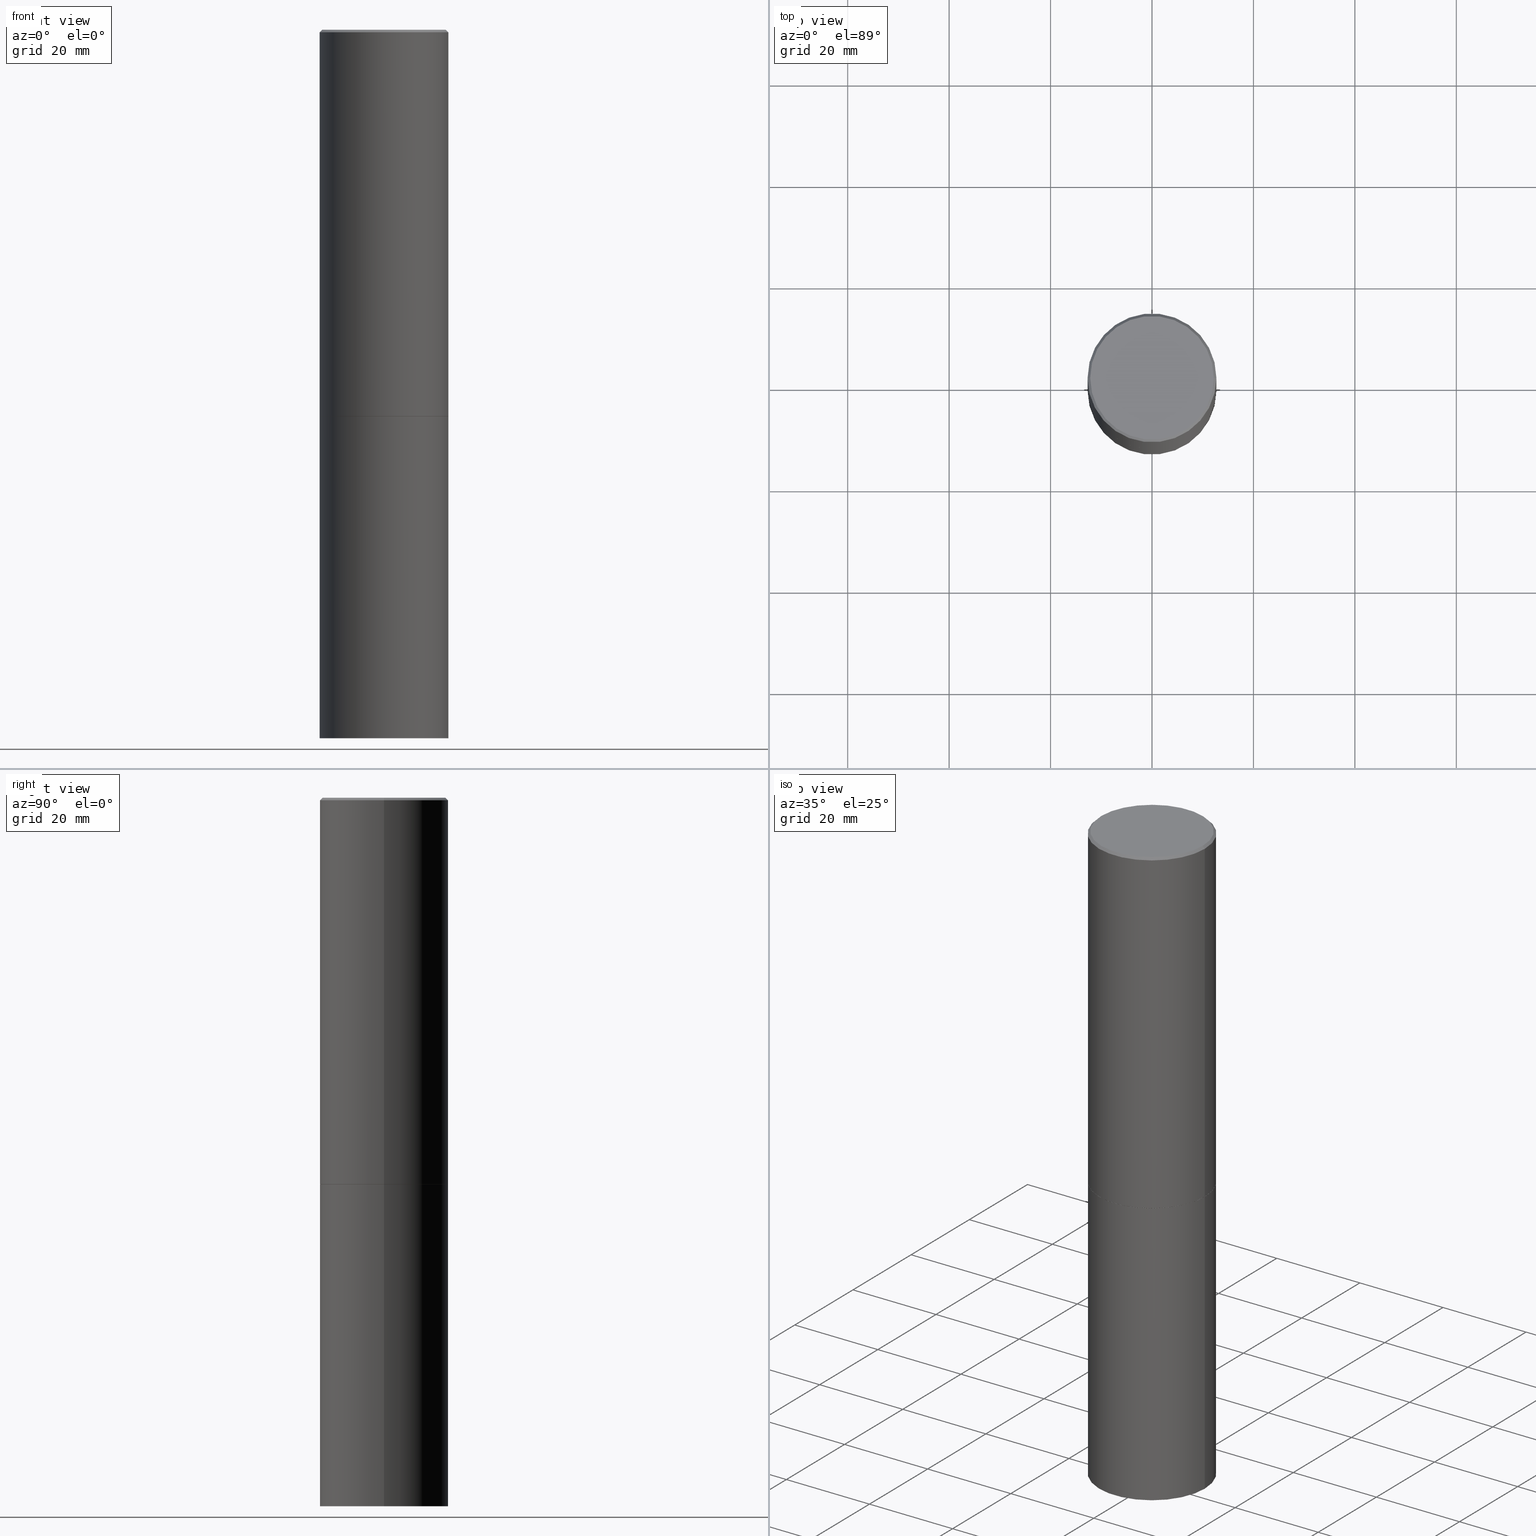
[diagram: canonical four-view strip — front | top / right | iso, engineering-drawing reading convention]
A machine part, canonical four-view strip (front | top / right | iso — engineering-drawing reading convention). The complete STEP part file that produces these views, byte-faithful:
ISO-10303-21;
HEADER;
FILE_DESCRIPTION (( 'STEP AP203' ),
    '1' );
FILE_NAME ('77294.STEP',
    '2024-02-29T18:20:36',
    ( '' ),
    ( '' ),
    'SwSTEP 2.0',
    'SolidWorks 2023',
    '' );
FILE_SCHEMA (( 'CONFIG_CONTROL_DESIGN' ));
ENDSEC;

DATA;
#1 = VERTEX_POINT ( 'NONE', #246 ) ;
#2 = AXIS2_PLACEMENT_3D ( 'NONE', #358, #106, #195 ) ;
#3 = PERSON_AND_ORGANIZATION ( #82, #279 ) ;
#4 = APPROVAL_STATUS ( 'not_yet_approved' ) ;
#5 = PERSON_AND_ORGANIZATION ( #82, #279 ) ;
#6 = EDGE_CURVE ( 'NONE', #336, #277, #349, .T. ) ;
#7 = AXIS2_PLACEMENT_3D ( 'NONE', #263, #12, #270 ) ;
#8 = PERSON_AND_ORGANIZATION ( #82, #279 ) ;
#9 = AXIS2_PLACEMENT_3D ( 'NONE', #357, #141, #104 ) ;
#10 = DIRECTION ( 'NONE',  ( -2.445468806185136597E-29, 3.491481338843145583E-15, 1.000000000000000000 ) ) ;
#11 = PRODUCT_DEFINITION_FORMATION_WITH_SPECIFIED_SOURCE ( 'ANY', '', #329, .NOT_KNOWN. ) ;
#12 = DIRECTION ( 'NONE',  ( -2.445468806185136597E-29, 3.491481338843145583E-15, 1.000000000000000000 ) ) ;
#13 = ORIENTED_EDGE ( 'NONE', *, *, #59, .F. ) ;
#14 = DIRECTION ( 'NONE',  ( 1.000000000000000000, -6.982962677686262766E-15, 0.000000000000000000 ) ) ;
#15 = ADVANCED_FACE ( 'NONE', ( #305 ), #23, .F. ) ;
#16 = VECTOR ( 'NONE', #350, 39.37007874015748143 ) ;
#17 = CARTESIAN_POINT ( 'NONE',  ( 4.890937612370304688E-31, -6.982962677686335982E-17, -0.02000000000000012879 ) ) ;
#18 = ORIENTED_EDGE ( 'NONE', *, *, #119, .F. ) ;
#19 = CARTESIAN_POINT ( 'NONE',  ( -0.4999999999999997224, 3.421651712066268085E-15, -0.02000000000000012879 ) ) ;
#20 = LINE ( 'NONE', #268, #16 ) ;
#21 = ORIENTED_EDGE ( 'NONE', *, *, #133, .T. ) ;
#22 = DIRECTION ( 'NONE',  ( 1.000000000000000000, -6.982962677686266711E-15, 0.000000000000000000 ) ) ;
#23 = PLANE ( 'NONE',  #313 ) ;
#24 = EDGE_CURVE ( 'NONE', #175, #1, #344, .T. ) ;
#25 = CARTESIAN_POINT ( 'NONE',  ( 7.333960949749226429E-29, -1.047095253519059492E-14, -2.999000000000000554 ) ) ;
#26 = ORIENTED_EDGE ( 'NONE', *, *, #356, .T. ) ;
#27 = CLOSED_SHELL ( 'NONE', ( #229, #298, #123, #101, #31, #308, #251, #15 ) ) ;
#28 = APPROVAL_PERSON_ORGANIZATION ( #153, #261, #151 ) ;
#29 = ORIENTED_EDGE ( 'NONE', *, *, #167, .T. ) ;
#30 = CALENDAR_DATE ( 2024, 29, 2 ) ;
#31 = ADVANCED_FACE ( 'NONE', ( #154 ), #32, .T. ) ;
#32 = CYLINDRICAL_SURFACE ( 'NONE', #110, 0.4999999999999998335 ) ;
#33 = VECTOR ( 'NONE', #262, 39.37007874015748143 ) ;
#34 = DIRECTION ( 'NONE',  ( 0.000000000000000000, 0.000000000000000000, 1.000000000000000000 ) ) ;
#35 = EDGE_CURVE ( 'NONE', #335, #277, #233, .T. ) ;
#36 = AXIS2_PLACEMENT_3D ( 'NONE', #76, #130, #216 ) ;
#37 = DIRECTION ( 'NONE',  ( -2.445468806185136597E-29, 3.491481338843145583E-15, 1.000000000000000000 ) ) ;
#38 = ORIENTED_EDGE ( 'NONE', *, *, #191, .T. ) ;
#39 = PERSON_AND_ORGANIZATION ( #82, #279 ) ;
#40 = CYLINDRICAL_SURFACE ( 'NONE', #7, 0.5000000000000000000 ) ;
#41 = EDGE_LOOP ( 'NONE', ( #249, #38 ) ) ;
#42 = DATE_AND_TIME ( #295, #225 ) ;
#43 = AXIS2_PLACEMENT_3D ( 'NONE', #136, #292, #242 ) ;
#44 = CARTESIAN_POINT ( 'NONE',  ( 0.4989999999999999991, -1.395894239269488369E-14, -2.999999999999999556 ) ) ;
#45 = ADVANCED_FACE ( 'NONE', ( #67 ), #157, .T. ) ;
#46 = ORIENTED_EDGE ( 'NONE', *, *, #352, .T. ) ;
#47 = AXIS2_PLACEMENT_3D ( 'NONE', #71, #238, #296 ) ;
#48 = CARTESIAN_POINT ( 'NONE',  ( 0.000000000000000000, 0.000000000000000000, 0.000000000000000000 ) ) ;
#49 = ORIENTED_EDGE ( 'NONE', *, *, #73, .T. ) ;
#50 = CARTESIAN_POINT ( 'NONE',  ( 3.351822085289405181E-15, 0.4799999999999996492, -1.669508273909558064E-15 ) ) ;
#51 = DIRECTION ( 'NONE',  ( 2.445468806185136597E-29, -3.491481338843145583E-15, -1.000000000000000000 ) ) ;
#52 = CARTESIAN_POINT ( 'NONE',  ( -3.131554243005659264E-46, 4.471029511141341874E-32, 1.280553747030123384E-17 ) ) ;
#53 = ORIENTED_EDGE ( 'NONE', *, *, #182, .T. ) ;
#54 = DIRECTION ( 'NONE',  ( 1.000000000000000000, -6.982962677686266711E-15, 0.000000000000000000 ) ) ;
#55 = VERTEX_POINT ( 'NONE', #208 ) ;
#56 = CIRCLE ( 'NONE', #338, 0.4999999999999997224 ) ;
#57 = CC_DESIGN_APPROVAL ( #261, ( #11 ) ) ;
#58 = APPLICATION_CONTEXT ( 'configuration controlled 3d designs of mechanical parts and assemblies' ) ;
#59 = EDGE_CURVE ( 'NONE', #140, #166, #272, .T. ) ;
#60 = APPROVAL_DATE_TIME ( #61, #333 ) ;
#61 = DATE_AND_TIME ( #177, #303 ) ;
#62 = AXIS2_PLACEMENT_3D ( 'NONE', #156, #10, #353 ) ;
#63 = ADVANCED_FACE ( 'NONE', ( #318 ), #129, .T. ) ;
#64 = COORDINATED_UNIVERSAL_TIME_OFFSET ( 5, 0, .BEHIND. ) ;
#65 = CARTESIAN_POINT ( 'NONE',  ( 3.491481338843267462E-15, 0.4999999999999807931, -5.500000000000001776 ) ) ;
#66 = CONICAL_SURFACE ( 'NONE', #199, 0.4989999999999999991, 0.7853981633978239785 ) ;
#67 = FACE_OUTER_BOUND ( 'NONE', #147, .T. ) ;
#68 = SHAPE_DEFINITION_REPRESENTATION ( #137, #116 ) ;
#69 = DIRECTION ( 'NONE',  ( -2.445468806185136877E-29, 3.491481338843145188E-15, 1.000000000000000000 ) ) ;
#70 = DIRECTION ( 'NONE',  ( 1.000000000000000000, -6.982962677686267499E-15, 4.876036955247132767E-29 ) ) ;
#71 = CARTESIAN_POINT ( 'NONE',  ( 3.491481338843206325E-15, 0.4999999999999895639, -3.000000000000001332 ) ) ;
#72 = AXIS2_PLACEMENT_3D ( 'NONE', #363, #117, #287 ) ;
#73 = EDGE_CURVE ( 'NONE', #83, #198, #214, .T. ) ;
#74 = AXIS2_PLACEMENT_3D ( 'NONE', #347, #75, #125 ) ;
#75 = DIRECTION ( 'NONE',  ( -2.445468806185136597E-29, 3.491481338843145583E-15, 1.000000000000000000 ) ) ;
#76 = CARTESIAN_POINT ( 'NONE',  ( 7.333960949749226429E-29, -1.047095253519059492E-14, -2.999000000000000554 ) ) ;
#77 = ORIENTED_EDGE ( 'NONE', *, *, #257, .T. ) ;
#78 = AXIS2_PLACEMENT_3D ( 'NONE', #107, #220, #164 ) ;
#79 = CARTESIAN_POINT ( 'NONE',  ( 1.345007843401824904E-28, -1.920314736363729972E-14, -5.500000000000000000 ) ) ;
#80 = ORIENTED_EDGE ( 'NONE', *, *, #322, .F. ) ;
#81 = VERTEX_POINT ( 'NONE', #189 ) ;
#82 = PERSON ( 'UNSPECIFIED', 'UNSPECIFIED', 'UNSPECIFIED', ('UNSPECIFIED'), ('UNSPECIFIED'), ('UNSPECIFIED') ) ;
#83 = VERTEX_POINT ( 'NONE', #190 ) ;
#84 = CARTESIAN_POINT ( 'NONE',  ( 0.5000000000000000000, -1.396592535537256813E-14, -2.999999999999999556 ) ) ;
#85 = ORIENTED_EDGE ( 'NONE', *, *, #173, .F. ) ;
#86 = CIRCLE ( 'NONE', #314, 0.5000000000000000000 ) ;
#87 = EDGE_CURVE ( 'NONE', #166, #140, #152, .T. ) ;
#88 = CC_DESIGN_SECURITY_CLASSIFICATION ( #236, ( #11 ) ) ;
#89 = PERSON_AND_ORGANIZATION ( #82, #279 ) ;
#90 = CALENDAR_DATE ( 2024, 29, 2 ) ;
#91 = DIRECTION ( 'NONE',  ( 1.000000000000000000, 0.000000000000000000, 0.000000000000000000 ) ) ;
#92 = EDGE_CURVE ( 'NONE', #198, #83, #228, .T. ) ;
#93 = APPROVAL_STATUS ( 'not_yet_approved' ) ;
#94 = DIRECTION ( 'NONE',  ( 1.000000000000000000, -6.982962677686266711E-15, 4.876176775795935793E-29 ) ) ;
#95 = CARTESIAN_POINT ( 'NONE',  ( 1.345007843401824904E-28, -1.920314736363729972E-14, -5.500000000000000000 ) ) ;
#96 = ORIENTED_EDGE ( 'NONE', *, *, #352, .F. ) ;
#97 = PERSON_AND_ORGANIZATION ( #82, #279 ) ;
#98 = CARTESIAN_POINT ( 'NONE',  ( 0.000000000000000000, 0.000000000000000000, 0.000000000000000000 ) ) ;
#99 = MANIFOLD_SOLID_BREP ( 'Body-Move/Copy2[2]', #27 ) ;
#100 = DIRECTION ( 'NONE',  ( -0.7071067811868130271, 7.493145998871311837E-15, 0.7071067811862817853 ) ) ;
#101 = ADVANCED_FACE ( 'NONE', ( #144 ), #193, .T. ) ;
#102 = CARTESIAN_POINT ( 'NONE',  ( 7.336406418555408669E-29, -1.047444401652943478E-14, -2.999999999999999556 ) ) ;
#103 = LINE ( 'NONE', #359, #278 ) ;
#104 = DIRECTION ( 'NONE',  ( 1.000000000000000000, -6.982962677686269077E-15, 0.000000000000000000 ) ) ;
#105 = CARTESIAN_POINT ( 'NONE',  ( -0.4999999999999998335, 3.552713678800499746E-15, -2.459467545127452330E-29 ) ) ;
#106 = DIRECTION ( 'NONE',  ( -2.445468806185136597E-29, 3.491481338843145583E-15, 1.000000000000000000 ) ) ;
#107 = CARTESIAN_POINT ( 'NONE',  ( 4.890937612370304688E-31, -6.982962677686335982E-17, -0.02000000000000012879 ) ) ;
#108 = CARTESIAN_POINT ( 'NONE',  ( 7.336406418555408669E-29, -1.047444401652943478E-14, -2.999999999999999556 ) ) ;
#109 = ORIENTED_EDGE ( 'NONE', *, *, #133, .F. ) ;
#110 = AXIS2_PLACEMENT_3D ( 'NONE', #98, #37, #316 ) ;
#111 = ORIENTED_EDGE ( 'NONE', *, *, #73, .F. ) ;
#112 =( GEOMETRIC_REPRESENTATION_CONTEXT ( 3 ) GLOBAL_UNCERTAINTY_ASSIGNED_CONTEXT ( ( #285 ) ) GLOBAL_UNIT_ASSIGNED_CONTEXT ( ( #230, #256, #201 ) ) REPRESENTATION_CONTEXT ( 'NONE', 'WORKASPACE' ) );
#113 = ORIENTED_EDGE ( 'NONE', *, *, #284, .F. ) ;
#114 = PRODUCT_DEFINITION ( 'UNKNOWN', '', #11, #340 ) ;
#115 = ORIENTED_EDGE ( 'NONE', *, *, #148, .F. ) ;
#116 = ADVANCED_BREP_SHAPE_REPRESENTATION ( '77294', ( #342, #99, #215 ), #112 ) ;
#117 = DIRECTION ( 'NONE',  ( -2.445468806185136597E-29, 3.491481338843145583E-15, 1.000000000000000000 ) ) ;
#118 = APPROVAL_STATUS ( 'not_yet_approved' ) ;
#119 = EDGE_CURVE ( 'NONE', #81, #336, #103, .T. ) ;
#120 = PERSON_AND_ORGANIZATION_ROLE ( 'design_owner' ) ;
#121 = CC_DESIGN_PERSON_AND_ORGANIZATION_ASSIGNMENT ( #97, #124, ( #11 ) ) ;
#122 = AXIS2_PLACEMENT_3D ( 'NONE', #259, #51, #343 ) ;
#123 = ADVANCED_FACE ( 'NONE', ( #319 ), #325, .T. ) ;
#124 = PERSON_AND_ORGANIZATION_ROLE ( 'creator' ) ;
#125 = DIRECTION ( 'NONE',  ( 1.000000000000000000, -6.982962677686266711E-15, 0.000000000000000000 ) ) ;
#126 = VECTOR ( 'NONE', #100, 39.37007874015748854 ) ;
#127 = APPROVAL_PERSON_ORGANIZATION ( #8, #286, #266 ) ;
#128 = COORDINATED_UNIVERSAL_TIME_OFFSET ( 5, 0, .BEHIND. ) ;
#129 = PLANE ( 'NONE',  #253 ) ;
#130 = DIRECTION ( 'NONE',  ( -2.445468806185136597E-29, 3.491481338843145583E-15, 1.000000000000000000 ) ) ;
#131 = DATE_AND_TIME ( #90, #265 ) ;
#132 = ORIENTED_EDGE ( 'NONE', *, *, #257, .F. ) ;
#133 = EDGE_CURVE ( 'NONE', #198, #1, #321, .T. ) ;
#134 = DATE_TIME_ROLE ( 'classification_date' ) ;
#135 = APPROVAL_DATE_TIME ( #339, #261 ) ;
#136 = CARTESIAN_POINT ( 'NONE',  ( 7.336406418555408669E-29, -1.047444401652943478E-14, -2.999999999999999556 ) ) ;
#137 = PRODUCT_DEFINITION_SHAPE ( 'NONE', 'NONE',  #114 ) ;
#138 = VECTOR ( 'NONE', #69, 39.37007874015748143 ) ;
#139 = DIRECTION ( 'NONE',  ( 1.000000000000000000, -6.982962677686269077E-15, 0.000000000000000000 ) ) ;
#140 = VERTEX_POINT ( 'NONE', #186 ) ;
#141 = DIRECTION ( 'NONE',  ( -2.445468806185136597E-29, 3.491481338843145583E-15, 1.000000000000000000 ) ) ;
#142 = FACE_OUTER_BOUND ( 'NONE', #301, .T. ) ;
#143 = ORIENTED_EDGE ( 'NONE', *, *, #92, .F. ) ;
#144 = FACE_OUTER_BOUND ( 'NONE', #169, .T. ) ;
#145 = DIRECTION ( 'NONE',  ( 2.438088387897960049E-29, -3.491481338843145188E-15, -1.000000000000000000 ) ) ;
#146 = AXIS2_PLACEMENT_3D ( 'NONE', #102, #158, #328 ) ;
#147 = EDGE_LOOP ( 'NONE', ( #366, #46, #171, #192 ) ) ;
#148 = EDGE_CURVE ( 'NONE', #83, #175, #20, .T. ) ;
#149 = DIRECTION ( 'NONE',  ( -2.445468806185136597E-29, 3.491481338843145583E-15, 1.000000000000000000 ) ) ;
#150 = ORIENTED_EDGE ( 'NONE', *, *, #6, .F. ) ;
#151 = APPROVAL_ROLE ( '' ) ;
#152 = CIRCLE ( 'NONE', #9, 0.4989999999999999991 ) ;
#153 = PERSON_AND_ORGANIZATION ( #82, #279 ) ;
#154 = FACE_OUTER_BOUND ( 'NONE', #247, .T. ) ;
#155 = VECTOR ( 'NONE', #218, 39.37007874015748143 ) ;
#156 = CARTESIAN_POINT ( 'NONE',  ( 7.336406418555408669E-29, -1.047444401652943478E-14, -2.999999999999999556 ) ) ;
#157 = CYLINDRICAL_SURFACE ( 'NONE', #334, 0.5000000000000000000 ) ;
#158 = DIRECTION ( 'NONE',  ( -2.438088387897960049E-29, 3.491481338843145188E-15, 1.000000000000000000 ) ) ;
#159 = PERSON_AND_ORGANIZATION_ROLE ( 'classification_officer' ) ;
#160 = DIRECTION ( 'NONE',  ( 0.7071067811868130271, -2.468850131085038979E-15, 0.7071067811862817853 ) ) ;
#161 = VECTOR ( 'NONE', #160, 39.37007874015748854 ) ;
#162 = EDGE_CURVE ( 'NONE', #81, #335, #235, .T. ) ;
#163 = FACE_OUTER_BOUND ( 'NONE', #210, .T. ) ;
#164 = DIRECTION ( 'NONE',  ( -1.000000000000000000, 6.982962677686266711E-15, 0.000000000000000000 ) ) ;
#165 = FACE_OUTER_BOUND ( 'NONE', #41, .T. ) ;
#166 = VERTEX_POINT ( 'NONE', #240 ) ;
#167 = EDGE_CURVE ( 'NONE', #55, #309, #206, .T. ) ;
#168 = ORIENTED_EDGE ( 'NONE', *, *, #322, .T. ) ;
#169 = EDGE_LOOP ( 'NONE', ( #115, #143, #21, #271 ) ) ;
#170 = FACE_OUTER_BOUND ( 'NONE', #213, .T. ) ;
#171 = ORIENTED_EDGE ( 'NONE', *, *, #119, .T. ) ;
#172 = CC_DESIGN_APPROVAL ( #286, ( #236 ) ) ;
#173 = EDGE_CURVE ( 'NONE', #140, #309, #205, .T. ) ;
#174 = DIRECTION ( 'NONE',  ( -2.445468806185136597E-29, 3.491481338843145583E-15, 1.000000000000000000 ) ) ;
#175 = VERTEX_POINT ( 'NONE', #326 ) ;
#176 = CYLINDRICAL_SURFACE ( 'NONE', #310, 0.4999999999999998335 ) ;
#177 = CALENDAR_DATE ( 2024, 29, 2 ) ;
#178 = DATE_TIME_ROLE ( 'creation_date' ) ;
#179 = APPROVAL_PERSON_ORGANIZATION ( #3, #333, #203 ) ;
#180 = CC_DESIGN_DATE_AND_TIME_ASSIGNMENT ( #226, #178, ( #114 ) ) ;
#181 = MECHANICAL_CONTEXT ( 'NONE', #58, 'mechanical' ) ;
#182 = EDGE_CURVE ( 'NONE', #166, #55, #267, .T. ) ;
#183 = COORDINATED_UNIVERSAL_TIME_OFFSET ( 5, 0, .BEHIND. ) ;
#184 = DIRECTION ( 'NONE',  ( -1.000000000000000000, 6.982962677686265922E-15, -4.876176775795935793E-29 ) ) ;
#185 = CLOSED_SHELL ( 'NONE', ( #260, #63, #222, #45 ) ) ;
#186 = CARTESIAN_POINT ( 'NONE',  ( -0.4989999999999999991, -6.923537310738314819E-15, -2.999999999999999556 ) ) ;
#187 = FACE_OUTER_BOUND ( 'NONE', #281, .T. ) ;
#188 = ORIENTED_EDGE ( 'NONE', *, *, #59, .T. ) ;
#189 = CARTESIAN_POINT ( 'NONE',  ( 0.5000000000000000000, -2.269462870248043307E-14, -5.500000000000000000 ) ) ;
#190 = CARTESIAN_POINT ( 'NONE',  ( 0.4799999999999996492, -3.396558832296480127E-15, 1.280553747032483033E-17 ) ) ;
#191 = EDGE_CURVE ( 'NONE', #277, #336, #364, .T. ) ;
#192 = ORIENTED_EDGE ( 'NONE', *, *, #191, .F. ) ;
#193 = CONICAL_SURFACE ( 'NONE', #78, 0.4999999999999997224, 0.7853981633974463916 ) ;
#194 = DIRECTION ( 'NONE',  ( -2.445468806185136597E-29, 3.491481338843145583E-15, 1.000000000000000000 ) ) ;
#195 = DIRECTION ( 'NONE',  ( 1.000000000000000000, -6.982962677686266711E-15, 0.000000000000000000 ) ) ;
#196 =( LENGTH_UNIT ( ) NAMED_UNIT ( * ) SI_UNIT ( $, .METRE. ) );
#197 = ORIENTED_EDGE ( 'NONE', *, *, #148, .T. ) ;
#198 = VERTEX_POINT ( 'NONE', #299 ) ;
#199 = AXIS2_PLACEMENT_3D ( 'NONE', #108, #300, #139 ) ;
#200 = ORIENTED_EDGE ( 'NONE', *, *, #173, .T. ) ;
#201 =( NAMED_UNIT ( * ) SI_UNIT ( $, .STERADIAN. ) SOLID_ANGLE_UNIT ( ) );
#202 = CONICAL_SURFACE ( 'NONE', #43, 0.4989999999999999991, 0.7853981633978239785 ) ;
#203 = APPROVAL_ROLE ( '' ) ;
#204 = CARTESIAN_POINT ( 'NONE',  ( -0.5000000000000000000, 3.552713678800500929E-15, -2.459467545127452891E-29 ) ) ;
#205 = LINE ( 'NONE', #354, #126 ) ;
#206 = CIRCLE ( 'NONE', #36, 0.5000000000000000000 ) ;
#207 = COORDINATED_UNIVERSAL_TIME_OFFSET ( 5, 0, .BEHIND. ) ;
#208 = CARTESIAN_POINT ( 'NONE',  ( 0.5000000000000000000, -1.396243387403372828E-14, -2.999000000000000554 ) ) ;
#209 = LINE ( 'NONE', #320, #138 ) ;
#210 = EDGE_LOOP ( 'NONE', ( #307, #200, #332, #234 ) ) ;
#211 = CARTESIAN_POINT ( 'NONE',  ( -3.131554243005659264E-46, 4.471029511141341874E-32, 1.280553747030123384E-17 ) ) ;
#212 = DIRECTION ( 'NONE',  ( -2.445468806185136597E-29, 3.491481338843145583E-15, 1.000000000000000000 ) ) ;
#213 = EDGE_LOOP ( 'NONE', ( #29, #168, #330, #132 ) ) ;
#214 = CIRCLE ( 'NONE', #315, 0.4799999999999996492 ) ;
#215 = AXIS2_PLACEMENT_3D ( 'NONE', #346, #34, #91 ) ;
#216 = DIRECTION ( 'NONE',  ( 1.000000000000000000, -6.982962677686266711E-15, 0.000000000000000000 ) ) ;
#217 = ORIENTED_EDGE ( 'NONE', *, *, #24, .T. ) ;
#218 = DIRECTION ( 'NONE',  ( -2.445468806185136877E-29, 3.491481338843145188E-15, 1.000000000000000000 ) ) ;
#219 = EDGE_LOOP ( 'NONE', ( #250, #13 ) ) ;
#220 = DIRECTION ( 'NONE',  ( 2.445468806185136597E-29, -3.491481338843145583E-15, -1.000000000000000000 ) ) ;
#221 = ORIENTED_EDGE ( 'NONE', *, *, #162, .T. ) ;
#222 = ADVANCED_FACE ( 'NONE', ( #165 ), #317, .F. ) ;
#223 = EDGE_LOOP ( 'NONE', ( #111, #197, #217, #109 ) ) ;
#224 = ORIENTED_EDGE ( 'NONE', *, *, #35, .T. ) ;
#225 = LOCAL_TIME ( 13, 20, 36.00000000000000000, #128 ) ;
#226 = DATE_AND_TIME ( #30, #365 ) ;
#227 = DIRECTION ( 'NONE',  ( -2.445468806185136877E-29, 3.491481338843145188E-15, 1.000000000000000000 ) ) ;
#228 = CIRCLE ( 'NONE', #243, 0.4799999999999996492 ) ;
#229 = ADVANCED_FACE ( 'NONE', ( #163 ), #202, .T. ) ;
#230 =( CONVERSION_BASED_UNIT ( 'INCH', #312 ) LENGTH_UNIT ( ) NAMED_UNIT ( #297 ) );
#231 = DIRECTION ( 'NONE',  ( -2.445468806185136597E-29, 3.491481338843145583E-15, 1.000000000000000000 ) ) ;
#232 = APPLICATION_CONTEXT ( 'configuration controlled 3d designs of mechanical parts and assemblies' ) ;
#233 = LINE ( 'NONE', #204, #33 ) ;
#234 = ORIENTED_EDGE ( 'NONE', *, *, #182, .F. ) ;
#235 = CIRCLE ( 'NONE', #282, 0.5000000000000000000 ) ;
#236 = SECURITY_CLASSIFICATION ( '', '', #288 ) ;
#237 = DIRECTION ( 'NONE',  ( 2.438088387897960049E-29, -3.491481338843145188E-15, -1.000000000000000000 ) ) ;
#238 = DIRECTION ( 'NONE',  ( 2.438088387897960049E-29, -3.491481338843145188E-15, -1.000000000000000000 ) ) ;
#239 = CARTESIAN_POINT ( 'NONE',  ( 0.000000000000000000, 0.000000000000000000, 0.000000000000000000 ) ) ;
#240 = CARTESIAN_POINT ( 'NONE',  ( 0.4989999999999999991, -1.395894239269488369E-14, -2.999999999999999556 ) ) ;
#241 = PERSON_AND_ORGANIZATION_ROLE ( 'design_supplier' ) ;
#242 = DIRECTION ( 'NONE',  ( 1.000000000000000000, -6.982962677686269077E-15, 0.000000000000000000 ) ) ;
#243 = AXIS2_PLACEMENT_3D ( 'NONE', #52, #149, #361 ) ;
#244 = PRODUCT_RELATED_PRODUCT_CATEGORY ( 'detail', '', ( #329 ) ) ;
#245 = CARTESIAN_POINT ( 'NONE',  ( -0.5000000000000000000, -1.717677402183226998E-15, -2.999000000000000554 ) ) ;
#246 = CARTESIAN_POINT ( 'NONE',  ( -0.4999999999999997224, 3.421651712066268085E-15, -0.02000000000000012879 ) ) ;
#247 = EDGE_LOOP ( 'NONE', ( #80, #26, #77, #113 ) ) ;
#248 = DIRECTION ( 'NONE',  ( -1.000000000000000000, 6.982962677686265922E-15, -4.876176775795935793E-29 ) ) ;
#249 = ORIENTED_EDGE ( 'NONE', *, *, #6, .T. ) ;
#250 = ORIENTED_EDGE ( 'NONE', *, *, #87, .F. ) ;
#251 = ADVANCED_FACE ( 'NONE', ( #355 ), #294, .F. ) ;
#252 = CALENDAR_DATE ( 2024, 29, 2 ) ;
#253 = AXIS2_PLACEMENT_3D ( 'NONE', #65, #237, #184 ) ;
#254 = DIRECTION ( 'NONE',  ( -0.7071067811865461294, 2.468850131082242072E-15, -0.7071067811865489050 ) ) ;
#255 = LOCAL_TIME ( 13, 20, 36.00000000000000000, #341 ) ;
#256 =( NAMED_UNIT ( * ) PLANE_ANGLE_UNIT ( ) SI_UNIT ( $, .RADIAN. ) );
#257 = EDGE_CURVE ( 'NONE', #55, #175, #209, .T. ) ;
#258 = PERSON_AND_ORGANIZATION_ROLE ( 'creator' ) ;
#259 = CARTESIAN_POINT ( 'NONE',  ( 4.890937612370304688E-31, -6.982962677686335982E-17, -0.02000000000000012879 ) ) ;
#260 = ADVANCED_FACE ( 'NONE', ( #187 ), #40, .T. ) ;
#261 = APPROVAL ( #4, 'UNSPECIFIED' ) ;
#262 = DIRECTION ( 'NONE',  ( -2.445468806185136877E-29, 3.491481338843145188E-15, 1.000000000000000000 ) ) ;
#263 = CARTESIAN_POINT ( 'NONE',  ( 0.000000000000000000, 0.000000000000000000, 0.000000000000000000 ) ) ;
#264 = VECTOR ( 'NONE', #254, 39.37007874015748143 ) ;
#265 = LOCAL_TIME ( 13, 20, 36.00000000000000000, #207 ) ;
#266 = APPROVAL_ROLE ( '' ) ;
#267 = LINE ( 'NONE', #44, #161 ) ;
#268 = CARTESIAN_POINT ( 'NONE',  ( 0.4999999999999997224, -3.500078625662627502E-15, -0.02000000000000012879 ) ) ;
#269 = CC_DESIGN_DATE_AND_TIME_ASSIGNMENT ( #42, #134, ( #236 ) ) ;
#270 = DIRECTION ( 'NONE',  ( 1.000000000000000000, -6.982962677686266711E-15, 4.876176775795935793E-29 ) ) ;
#271 = ORIENTED_EDGE ( 'NONE', *, *, #284, .T. ) ;
#272 = CIRCLE ( 'NONE', #62, 0.4989999999999999991 ) ;
#273 = EDGE_LOOP ( 'NONE', ( #293, #49 ) ) ;
#274 = DIRECTION ( 'NONE',  ( -2.445468806185136597E-29, 3.491481338843145583E-15, 1.000000000000000000 ) ) ;
#275 = ORIENTED_EDGE ( 'NONE', *, *, #162, .F. ) ;
#276 = DIRECTION ( 'NONE',  ( 1.000000000000000000, -6.982962677686267499E-15, 4.876176775795936353E-29 ) ) ;
#277 = VERTEX_POINT ( 'NONE', #351 ) ;
#278 = VECTOR ( 'NONE', #227, 39.37007874015748143 ) ;
#279 = ORGANIZATION ( 'UNSPECIFIED', 'UNSPECIFIED', '' ) ;
#280 = LINE ( 'NONE', #105, #155 ) ;
#281 = EDGE_LOOP ( 'NONE', ( #221, #224, #150, #18 ) ) ;
#282 = AXIS2_PLACEMENT_3D ( 'NONE', #95, #212, #14 ) ;
#283 = CC_DESIGN_APPROVAL ( #333, ( #114 ) ) ;
#284 = EDGE_CURVE ( 'NONE', #1, #175, #56, .T. ) ;
#285 = UNCERTAINTY_MEASURE_WITH_UNIT (LENGTH_MEASURE( 1.000000000000000082E-05 ), #230, 'distance_accuracy_value', 'NONE');
#286 = APPROVAL ( #93, 'UNSPECIFIED' ) ;
#287 = DIRECTION ( 'NONE',  ( 1.000000000000000000, -6.982962677686266711E-15, 0.000000000000000000 ) ) ;
#288 = SECURITY_CLASSIFICATION_LEVEL ( 'unclassified' ) ;
#289 = CIRCLE ( 'NONE', #302, 0.5000000000000000000 ) ;
#290 = DIRECTION ( 'NONE',  ( -2.445468806185136597E-29, 3.491481338843145583E-15, 1.000000000000000000 ) ) ;
#291 = CC_DESIGN_PERSON_AND_ORGANIZATION_ASSIGNMENT ( #5, #120, ( #329 ) ) ;
#292 = DIRECTION ( 'NONE',  ( -2.445468806185136597E-29, 3.491481338843145583E-15, 1.000000000000000000 ) ) ;
#293 = ORIENTED_EDGE ( 'NONE', *, *, #92, .T. ) ;
#294 = PLANE ( 'NONE',  #146 ) ;
#295 = CALENDAR_DATE ( 2024, 29, 2 ) ;
#296 = DIRECTION ( 'NONE',  ( -1.000000000000000000, 6.982962677686265922E-15, -4.876176775795935793E-29 ) ) ;
#297 = DIMENSIONAL_EXPONENTS ( 1.000000000000000000, 0.000000000000000000, 0.000000000000000000, 0.000000000000000000, 0.000000000000000000, 0.000000000000000000, 0.000000000000000000 ) ;
#298 = ADVANCED_FACE ( 'NONE', ( #170 ), #176, .T. ) ;
#299 = CARTESIAN_POINT ( 'NONE',  ( -0.4799999999999996492, 3.386736898677836830E-15, 1.280553747027767124E-17 ) ) ;
#300 = DIRECTION ( 'NONE',  ( -2.445468806185136597E-29, 3.491481338843145583E-15, 1.000000000000000000 ) ) ;
#301 = EDGE_LOOP ( 'NONE', ( #85, #188, #53, #362 ) ) ;
#302 = AXIS2_PLACEMENT_3D ( 'NONE', #79, #194, #304 ) ;
#303 = LOCAL_TIME ( 13, 20, 36.00000000000000000, #64 ) ;
#304 = DIRECTION ( 'NONE',  ( 1.000000000000000000, -6.982962677686262766E-15, 0.000000000000000000 ) ) ;
#305 = FACE_OUTER_BOUND ( 'NONE', #273, .T. ) ;
#306 = CC_DESIGN_PERSON_AND_ORGANIZATION_ASSIGNMENT ( #89, #258, ( #114 ) ) ;
#307 = ORIENTED_EDGE ( 'NONE', *, *, #87, .T. ) ;
#308 = ADVANCED_FACE ( 'NONE', ( #142 ), #66, .T. ) ;
#309 = VERTEX_POINT ( 'NONE', #245 ) ;
#310 = AXIS2_PLACEMENT_3D ( 'NONE', #48, #174, #276 ) ;
#311 = APPLICATION_PROTOCOL_DEFINITION ( 'international standard', 'config_control_design', 1994, #58 ) ;
#312 = LENGTH_MEASURE_WITH_UNIT ( LENGTH_MEASURE( 0.02539999999999999897 ), #196 );
#313 = AXIS2_PLACEMENT_3D ( 'NONE', #50, #145, #248 ) ;
#314 = AXIS2_PLACEMENT_3D ( 'NONE', #25, #274, #22 ) ;
#315 = AXIS2_PLACEMENT_3D ( 'NONE', #211, #290, #70 ) ;
#316 = DIRECTION ( 'NONE',  ( 1.000000000000000000, -6.982962677686267499E-15, 4.876176775795936353E-29 ) ) ;
#317 = PLANE ( 'NONE',  #47 ) ;
#318 = FACE_OUTER_BOUND ( 'NONE', #337, .T. ) ;
#319 = FACE_OUTER_BOUND ( 'NONE', #223, .T. ) ;
#320 = CARTESIAN_POINT ( 'NONE',  ( 0.4999999999999998335, -3.491481338843132566E-15, 2.438088387897967336E-29 ) ) ;
#321 = LINE ( 'NONE', #19, #264 ) ;
#322 = EDGE_CURVE ( 'NONE', #309, #1, #280, .T. ) ;
#323 = APPROVAL_DATE_TIME ( #131, #286 ) ;
#324 = DIRECTION ( 'NONE',  ( -2.445468806185136597E-29, 3.491481338843145583E-15, 1.000000000000000000 ) ) ;
#325 = CONICAL_SURFACE ( 'NONE', #122, 0.4999999999999997224, 0.7853981633974463916 ) ;
#326 = CARTESIAN_POINT ( 'NONE',  ( 0.4999999999999997224, -3.500078625662627502E-15, -0.02000000000000012879 ) ) ;
#327 = CC_DESIGN_PERSON_AND_ORGANIZATION_ASSIGNMENT ( #348, #241, ( #11 ) ) ;
#328 = DIRECTION ( 'NONE',  ( 1.000000000000000000, -6.982962677686265922E-15, 4.876176775795935793E-29 ) ) ;
#329 = PRODUCT ( '77294', '77294', '', ( #181 ) ) ;
#330 = ORIENTED_EDGE ( 'NONE', *, *, #24, .F. ) ;
#331 = CARTESIAN_POINT ( 'NONE',  ( -0.5000000000000000000, -1.128608201128286632E-14, -5.500000000000000000 ) ) ;
#332 = ORIENTED_EDGE ( 'NONE', *, *, #167, .F. ) ;
#333 = APPROVAL ( #118, 'UNSPECIFIED' ) ;
#334 = AXIS2_PLACEMENT_3D ( 'NONE', #239, #324, #94 ) ;
#335 = VERTEX_POINT ( 'NONE', #331 ) ;
#336 = VERTEX_POINT ( 'NONE', #84 ) ;
#337 = EDGE_LOOP ( 'NONE', ( #275, #96 ) ) ;
#338 = AXIS2_PLACEMENT_3D ( 'NONE', #17, #231, #54 ) ;
#339 = DATE_AND_TIME ( #252, #255 ) ;
#340 = DESIGN_CONTEXT ( 'detailed design', #232, 'design' ) ;
#341 = COORDINATED_UNIVERSAL_TIME_OFFSET ( 5, 0, .BEHIND. ) ;
#342 = MANIFOLD_SOLID_BREP ( 'Body-Move/Copy2[1]', #185 ) ;
#343 = DIRECTION ( 'NONE',  ( -1.000000000000000000, 6.982962677686266711E-15, 0.000000000000000000 ) ) ;
#344 = CIRCLE ( 'NONE', #72, 0.4999999999999997224 ) ;
#345 = APPLICATION_PROTOCOL_DEFINITION ( 'international standard', 'config_control_design', 1994, #232 ) ;
#346 = CARTESIAN_POINT ( 'NONE',  ( 0.000000000000000000, 0.000000000000000000, 0.000000000000000000 ) ) ;
#347 = CARTESIAN_POINT ( 'NONE',  ( 7.336406418555408669E-29, -1.047444401652943478E-14, -2.999999999999999556 ) ) ;
#348 = PERSON_AND_ORGANIZATION ( #82, #279 ) ;
#349 = CIRCLE ( 'NONE', #2, 0.5000000000000000000 ) ;
#350 = DIRECTION ( 'NONE',  ( 0.7071067811865461294, -7.319954787623251312E-15, -0.7071067811865489050 ) ) ;
#351 = CARTESIAN_POINT ( 'NONE',  ( -0.5000000000000000000, -1.128608201128286632E-14, -2.999999999999999556 ) ) ;
#352 = EDGE_CURVE ( 'NONE', #335, #81, #289, .T. ) ;
#353 = DIRECTION ( 'NONE',  ( 1.000000000000000000, -6.982962677686269077E-15, 0.000000000000000000 ) ) ;
#354 = CARTESIAN_POINT ( 'NONE',  ( -0.4989999999999999991, -6.928835765086534855E-15, -2.999999999999999556 ) ) ;
#355 = FACE_OUTER_BOUND ( 'NONE', #219, .T. ) ;
#356 = EDGE_CURVE ( 'NONE', #309, #55, #86, .T. ) ;
#357 = CARTESIAN_POINT ( 'NONE',  ( 7.336406418555408669E-29, -1.047444401652943478E-14, -2.999999999999999556 ) ) ;
#358 = CARTESIAN_POINT ( 'NONE',  ( 7.336406418555408669E-29, -1.047444401652943478E-14, -2.999999999999999556 ) ) ;
#359 = CARTESIAN_POINT ( 'NONE',  ( 0.5000000000000000000, -3.491481338843133355E-15, 2.438088387897967896E-29 ) ) ;
#360 = CC_DESIGN_PERSON_AND_ORGANIZATION_ASSIGNMENT ( #39, #159, ( #236 ) ) ;
#361 = DIRECTION ( 'NONE',  ( 1.000000000000000000, -6.982962677686267499E-15, 4.876036955247132767E-29 ) ) ;
#362 = ORIENTED_EDGE ( 'NONE', *, *, #356, .F. ) ;
#363 = CARTESIAN_POINT ( 'NONE',  ( 4.890937612370304688E-31, -6.982962677686335982E-17, -0.02000000000000012879 ) ) ;
#364 = CIRCLE ( 'NONE', #74, 0.5000000000000000000 ) ;
#365 = LOCAL_TIME ( 13, 20, 36.00000000000000000, #183 ) ;
#366 = ORIENTED_EDGE ( 'NONE', *, *, #35, .F. ) ;
ENDSEC;
END-ISO-10303-21;
